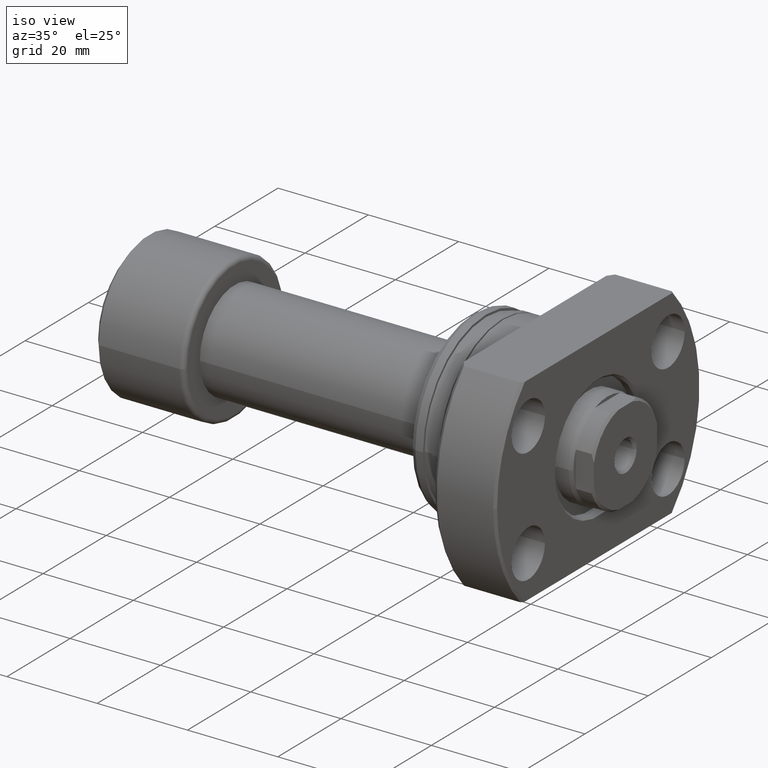
[diagram: clean part render]
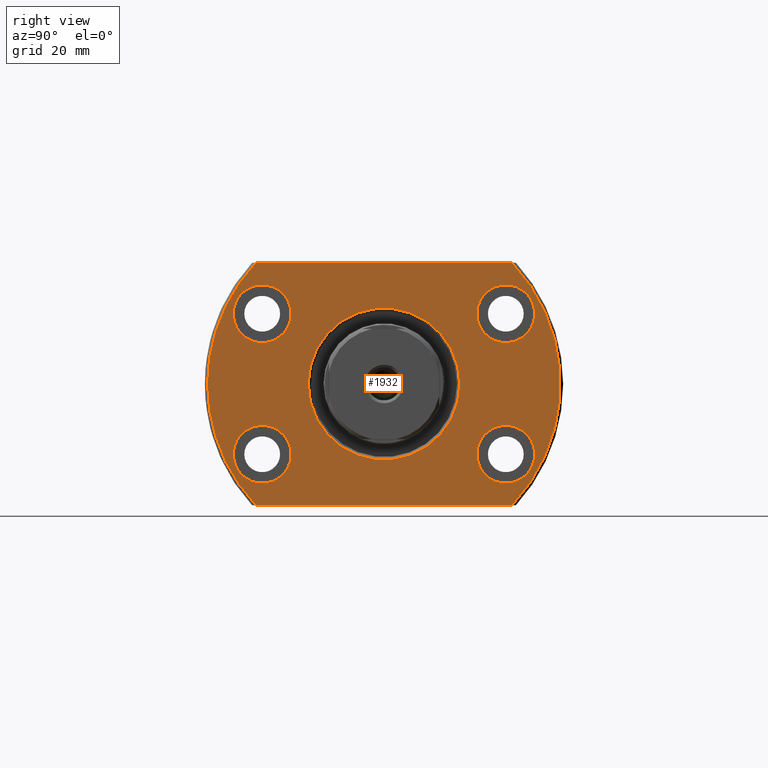
[diagram: tour spotlight — one face highlighted and labeled with its STEP entity id]
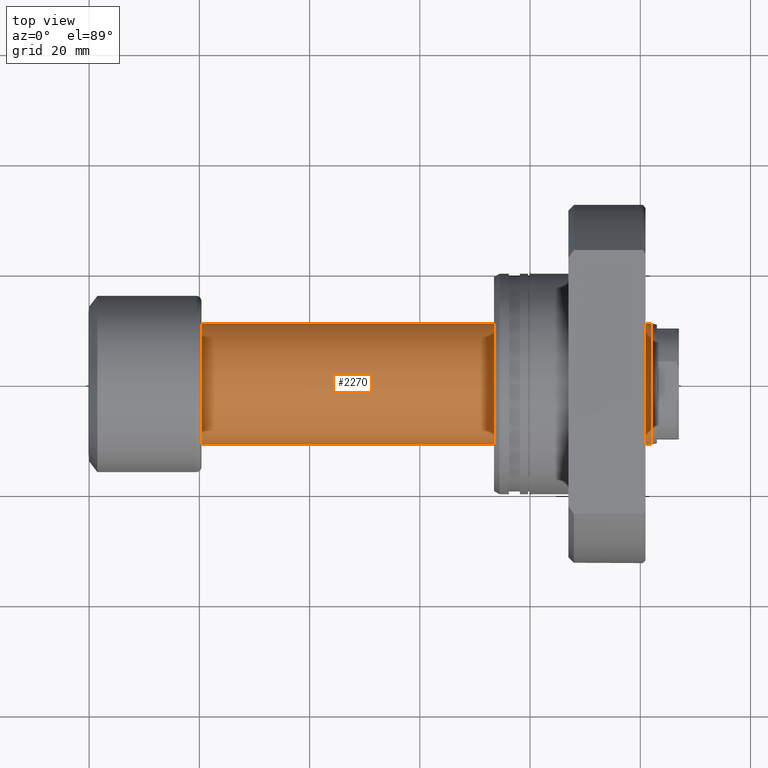
[diagram: tour spotlight — one face highlighted and labeled with its STEP entity id]
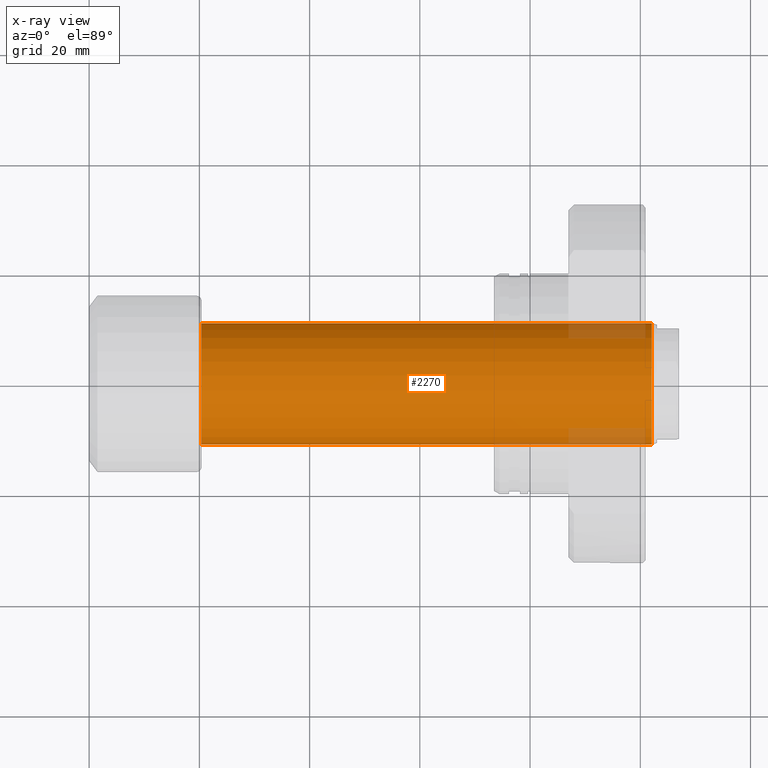
[diagram: x-ray of the same camera — body ghosted, this tour face saturated]
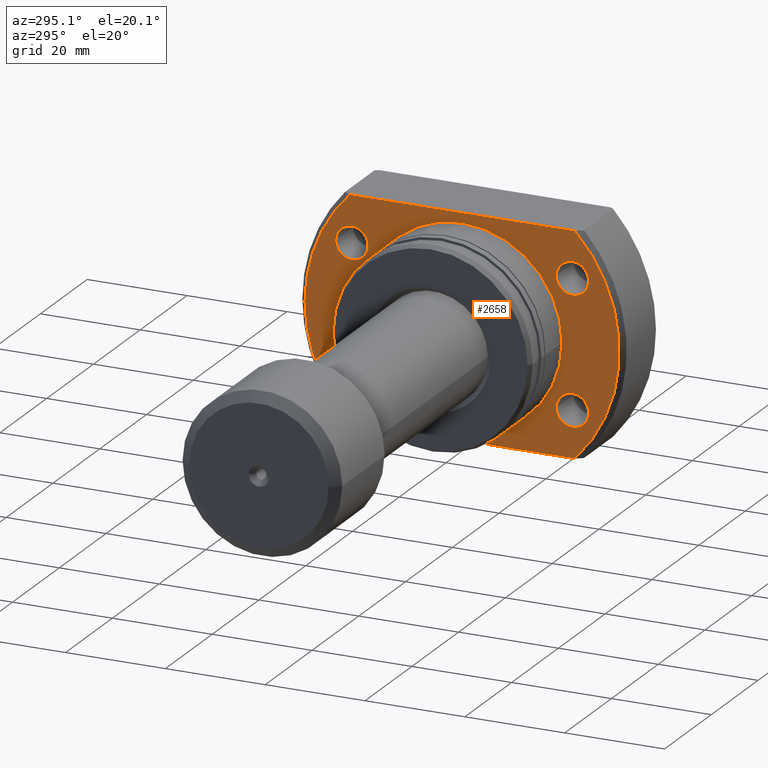
[diagram: tour spotlight — one face highlighted and labeled with its STEP entity id]
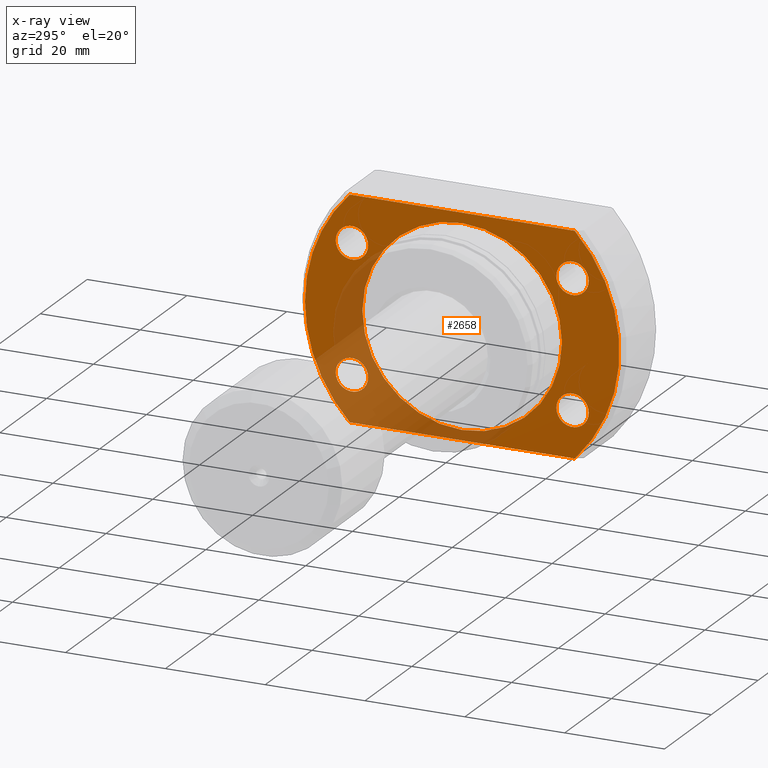
[diagram: x-ray of the same camera — body ghosted, this tour face saturated]
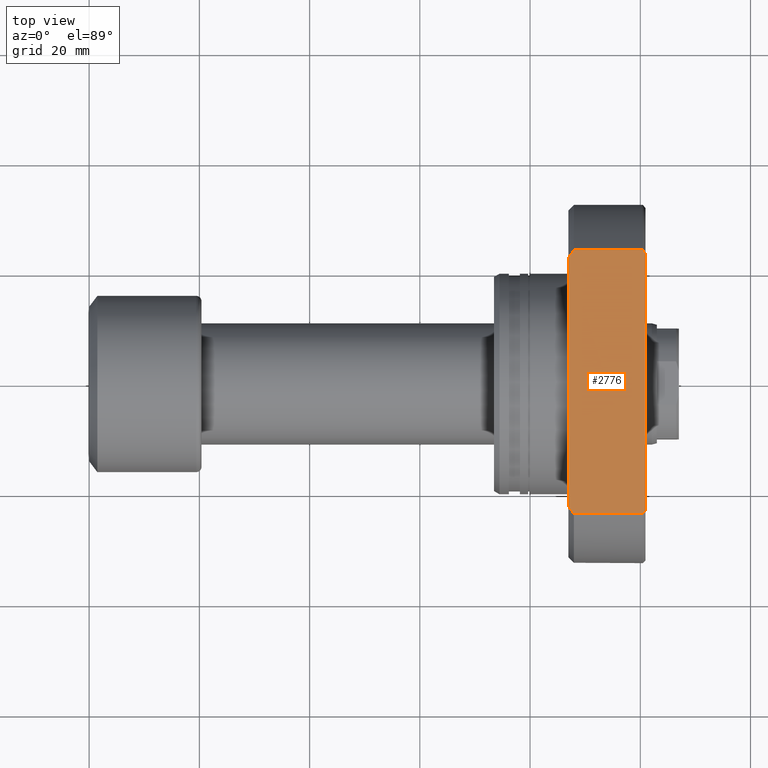
[diagram: tour spotlight — one face highlighted and labeled with its STEP entity id]
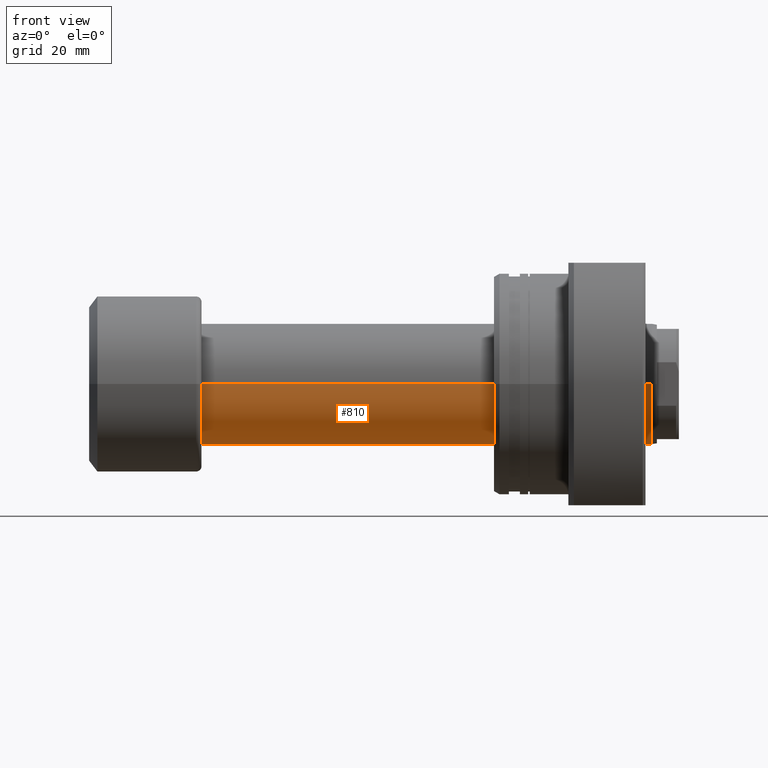
[diagram: tour spotlight — one face highlighted and labeled with its STEP entity id]
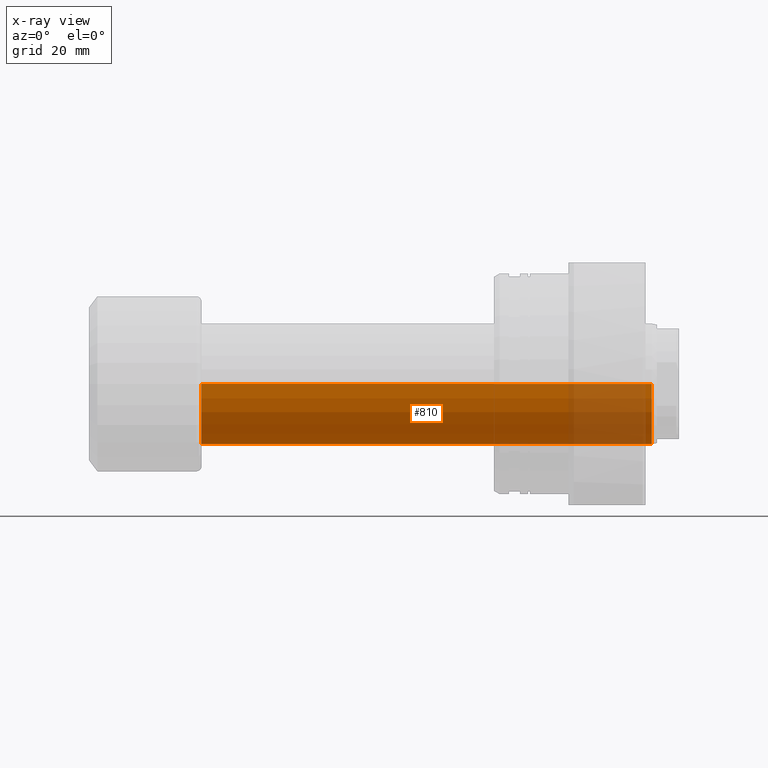
[diagram: x-ray of the same camera — body ghosted, this tour face saturated]
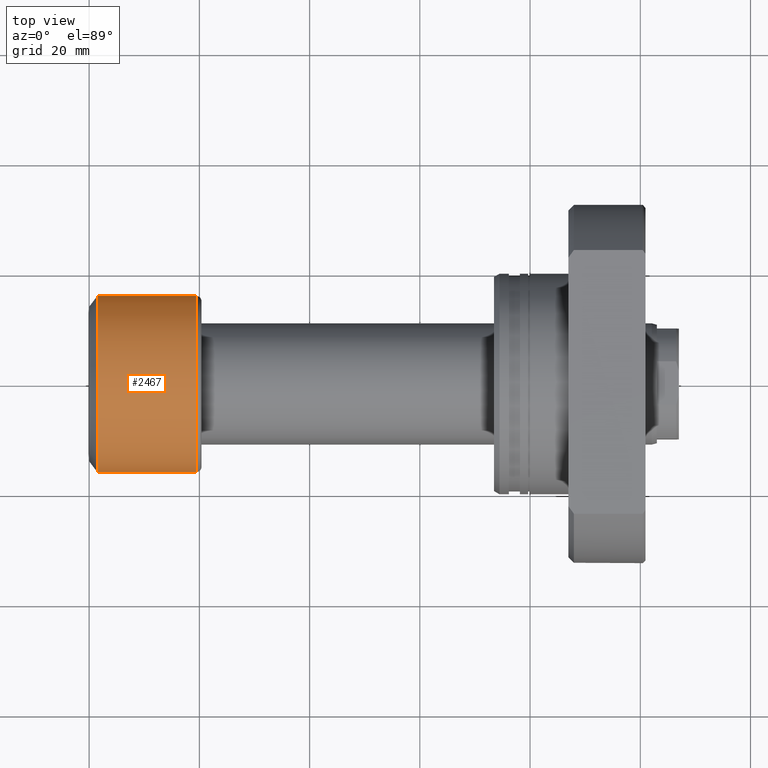
[diagram: tour spotlight — one face highlighted and labeled with its STEP entity id]
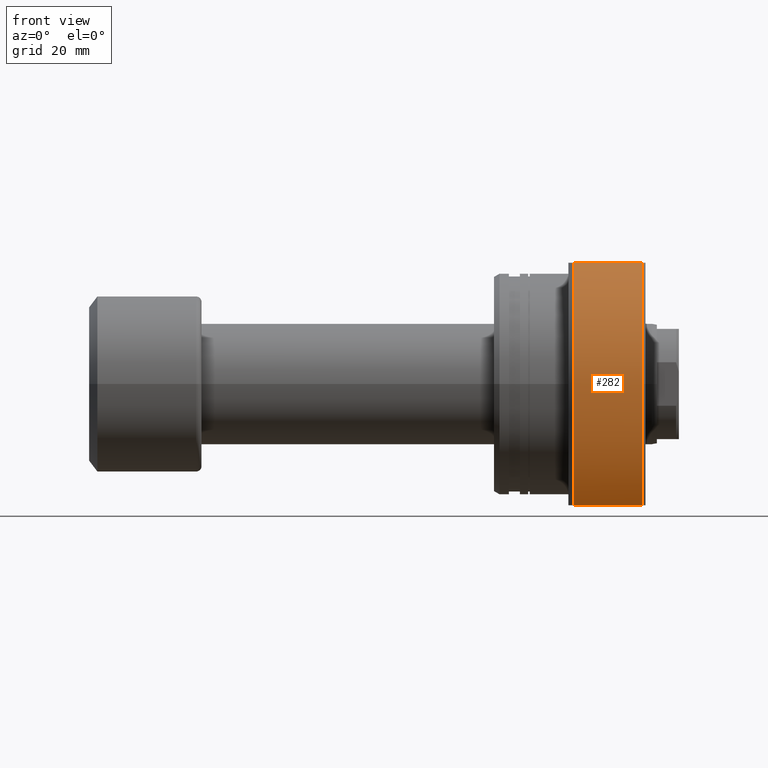
[diagram: tour spotlight — one face highlighted and labeled with its STEP entity id]
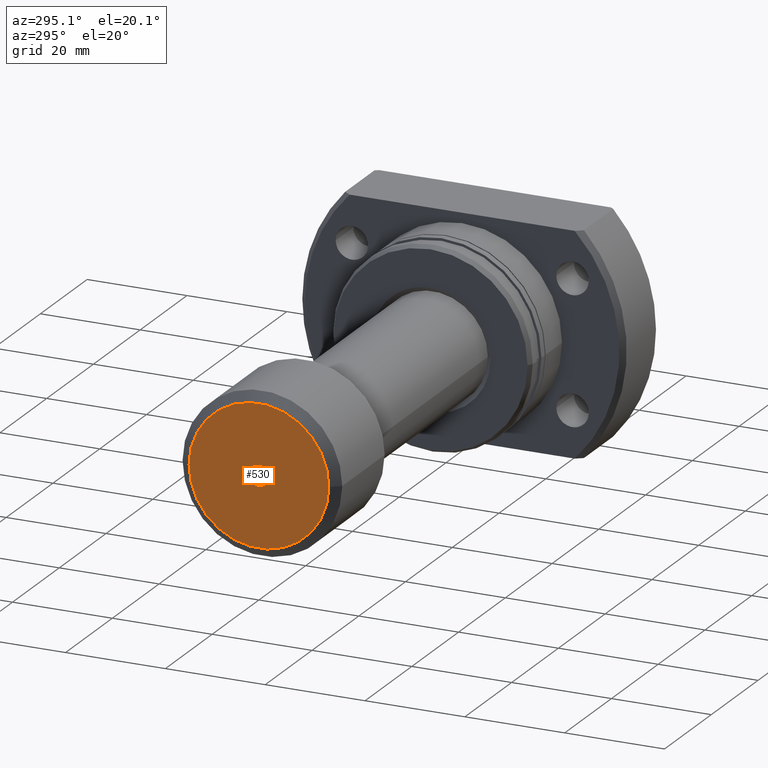
[diagram: tour spotlight — one face highlighted and labeled with its STEP entity id]
A machine part: a face-by-face anatomy tour. The part has 103 B-rep faces; the first image is the clean iso view, then the 8 largest visible faces are spotlighted one at a time (largest first), each with its STEP entity span.

Face 1 — right view, entity #1932. In plain terms, the highlighted planar face has unit normal (-1, -0, 0).
Definition (entity closure, byte-faithful):
#19 = EDGE_CURVE ( 'NONE', #357, #1593, #2964, .T. ) ;
#44 = CIRCLE ( 'NONE', #2736, 13.74999999999920774 ) ;
#50 = DIRECTION ( 'NONE',  ( 1.000000000000000000, -2.886466111666351885E-14, 0.000000000000000000 ) ) ;
#62 = DIRECTION ( 'NONE',  ( -1.000000000000000000, -1.335978326342566810E-17, 0.000000000000000000 ) ) ;
#108 = CARTESIAN_POINT ( 'NONE',  ( 27.50000000000000355, 23.23790007724450035, -22.00000000000000355 ) ) ;
#111 = CARTESIAN_POINT ( 'NONE',  ( 27.50000000000049027, 16.84999999999920917, 12.74999999999999822 ) ) ;
#125 = DIRECTION ( 'NONE',  ( -1.000000000000000000, -1.335978326342566810E-17, 0.000000000000000000 ) ) ;
#149 = ORIENTED_EDGE ( 'NONE', *, *, #2029, .F. ) ;
#165 = ORIENTED_EDGE ( 'NONE', *, *, #2103, .T. ) ;
#198 = ORIENTED_EDGE ( 'NONE', *, *, #578, .F. ) ;
#237 = DIRECTION ( 'NONE',  ( 2.907726969256361977E-14, 1.000000000000000000, 0.000000000000000000 ) ) ;
#240 = AXIS2_PLACEMENT_3D ( 'NONE', #503, #1491, #2496 ) ;
#262 = AXIS2_PLACEMENT_3D ( 'NONE', #1163, #2301, #2286 ) ;
#357 = VERTEX_POINT ( 'NONE', #865 ) ;
#387 = DIRECTION ( 'NONE',  ( 1.000000000000000000, -2.887798767815668620E-14, -6.310887241768094443E-30 ) ) ;
#432 = AXIS2_PLACEMENT_3D ( 'NONE', #1068, #50, #1783 ) ;
#444 = ORIENTED_EDGE ( 'NONE', *, *, #1253, .F. ) ;
#449 = CARTESIAN_POINT ( 'NONE',  ( 27.49999999999951683, -16.85000000000079012, -12.75000000000000178 ) ) ;
#452 = DIRECTION ( 'NONE',  ( 2.907726969256361977E-14, 1.000000000000000000, 0.000000000000000000 ) ) ;
#472 = FACE_BOUND ( 'NONE', #2337, .T. ) ;
#492 = DIRECTION ( 'NONE',  ( 1.000000000000000000, -2.887798767815668620E-14, -6.310887241768094443E-30 ) ) ;
#503 = CARTESIAN_POINT ( 'NONE',  ( 27.50000000000000355, -32.00000000000000000, 0.000000000000000000 ) ) ;
#536 = DIRECTION ( 'NONE',  ( 0.000000000000000000, 1.000000000000000000, 0.000000000000000000 ) ) ;
#553 = DIRECTION ( 'NONE',  ( 2.907726969256361977E-14, 1.000000000000000000, 0.000000000000000000 ) ) ;
#557 = EDGE_CURVE ( 'NONE', #1841, #917, #895, .T. ) ;
#573 = EDGE_CURVE ( 'NONE', #1387, #2961, #1639, .T. ) ;
#578 = EDGE_CURVE ( 'NONE', #1689, #2507, #1670, .T. ) ;
#584 = CARTESIAN_POINT ( 'NONE',  ( 27.50000000000000355, -32.00000000000000000, 0.000000000000000000 ) ) ;
#632 = CARTESIAN_POINT ( 'NONE',  ( 27.50000000000000355, 13.74999999999850075, 0.000000000000000000 ) ) ;
#635 = CARTESIAN_POINT ( 'NONE',  ( 27.50000000000000355, -13.75000000000070699, 1.683889348827610851E-15 ) ) ;
#670 = CIRCLE ( 'NONE', #1915, 32.00000000000000000 ) ;
#718 = ORIENTED_EDGE ( 'NONE', *, *, #2323, .T. ) ;
#722 = CARTESIAN_POINT ( 'NONE',  ( 27.50000000000064304, 22.09999999999920917, 12.74999999999999822 ) ) ;
#727 = CARTESIAN_POINT ( 'NONE',  ( 27.50000000000000355, 3.673940397442059375E-16, 0.000000000000000000 ) ) ;
#749 = FACE_BOUND ( 'NONE', #3212, .T. ) ;
#763 = FACE_OUTER_BOUND ( 'NONE', #1663, .T. ) ;
#769 = AXIS2_PLACEMENT_3D ( 'NONE', #2643, #387, #452 ) ;
#820 = CIRCLE ( 'NONE', #1969, 5.250000000000000888 ) ;
#827 = DIRECTION ( 'NONE',  ( 0.000000000000000000, -1.000000000000000000, 0.000000000000000000 ) ) ;
#842 = CARTESIAN_POINT ( 'NONE',  ( 27.50000000000000355, 23.23790007724450035, 22.00000000000000355 ) ) ;
#865 = CARTESIAN_POINT ( 'NONE',  ( 27.50000000000079581, 27.34999999999921272, 12.74999999999999822 ) ) ;
#881 = CARTESIAN_POINT ( 'NONE',  ( 27.50000000000000355, -7.068290497865035784E-13, 0.000000000000000000 ) ) ;
#884 = DIRECTION ( 'NONE',  ( -1.335978326342566810E-17, 1.000000000000000000, -0.000000000000000000 ) ) ;
#895 = CIRCLE ( 'NONE', #1985, 5.250000000000000888 ) ;
#917 = VERTEX_POINT ( 'NONE', #449 ) ;
#942 = CARTESIAN_POINT ( 'NONE',  ( 27.50000000000000355, -23.23790007724450035, 22.00000000000000355 ) ) ;
#965 = EDGE_LOOP ( 'NONE', ( #2515, #149 ) ) ;
#981 = DIRECTION ( 'NONE',  ( 1.000000000000000000, -2.886466111666351885E-14, 0.000000000000000000 ) ) ;
#1018 = CARTESIAN_POINT ( 'NONE',  ( 27.50000000000000355, 3.673940397442059375E-16, 0.000000000000000000 ) ) ;
#1034 = DIRECTION ( 'NONE',  ( 0.000000000000000000, 1.000000000000000000, 0.000000000000000000 ) ) ;
#1068 = CARTESIAN_POINT ( 'NONE',  ( 27.50000000000064304, 22.09999999999920917, 12.74999999999999822 ) ) ;
#1081 = AXIS2_PLACEMENT_3D ( 'NONE', #3029, #2213, #1971 ) ;
#1123 = CARTESIAN_POINT ( 'NONE',  ( 27.49999999999936406, -22.10000000000079368, -12.75000000000000178 ) ) ;
#1163 = CARTESIAN_POINT ( 'NONE',  ( 27.50000000000064304, 22.09999999999920917, -12.75000000000000178 ) ) ;
#1253 = EDGE_CURVE ( 'NONE', #1593, #357, #2600, .T. ) ;
#1254 = FACE_BOUND ( 'NONE', #2265, .T. ) ;
#1259 = VECTOR ( 'NONE', #884, 1000.000000000000000 ) ;
#1266 = CARTESIAN_POINT ( 'NONE',  ( 27.49999999999921130, -27.35000000000079368, -12.75000000000000178 ) ) ;
#1271 = VERTEX_POINT ( 'NONE', #584 ) ;
#1283 = CARTESIAN_POINT ( 'NONE',  ( 27.49999999999936406, -22.10000000000079368, 12.74999999999999822 ) ) ;
#1338 = ORIENTED_EDGE ( 'NONE', *, *, #2737, .T. ) ;
#1384 = VERTEX_POINT ( 'NONE', #842 ) ;
#1387 = VERTEX_POINT ( 'NONE', #1869 ) ;
#1404 = VERTEX_POINT ( 'NONE', #635 ) ;
#1421 = VERTEX_POINT ( 'NONE', #2099 ) ;
#1424 = EDGE_CURVE ( 'NONE', #2507, #1689, #2282, .T. ) ;
#1485 = EDGE_CURVE ( 'NONE', #3129, #1421, #820, .T. ) ;
#1491 = DIRECTION ( 'NONE',  ( -1.000000000000000000, -1.335978326342566810E-17, 0.000000000000000000 ) ) ;
#1493 = CIRCLE ( 'NONE', #3101, 5.250000000000000888 ) ;
#1563 = AXIS2_PLACEMENT_3D ( 'NONE', #722, #981, #2200 ) ;
#1593 = VERTEX_POINT ( 'NONE', #111 ) ;
#1625 = EDGE_CURVE ( 'NONE', #2157, #1404, #2243, .T. ) ;
#1634 = DIRECTION ( 'NONE',  ( -0.000000000000000000, 1.000000000000000000, 0.000000000000000000 ) ) ;
#1639 = LINE ( 'NONE', #2390, #1259 ) ;
#1663 = EDGE_LOOP ( 'NONE', ( #2831, #1338, #718, #2484, #1678 ) ) ;
#1670 = CIRCLE ( 'NONE', #262, 5.250000000000000888 ) ;
#1678 = ORIENTED_EDGE ( 'NONE', *, *, #2427, .T. ) ;
#1689 = VERTEX_POINT ( 'NONE', #2311 ) ;
#1732 = PLANE ( 'NONE',  #240 ) ;
#1783 = DIRECTION ( 'NONE',  ( 2.907726969256361977E-14, 1.000000000000000000, 0.000000000000000000 ) ) ;
#1802 = CIRCLE ( 'NONE', #2223, 32.00000000000000000 ) ;
#1806 = ORIENTED_EDGE ( 'NONE', *, *, #1625, .T. ) ;
#1811 = EDGE_CURVE ( 'NONE', #917, #1841, #2172, .T. ) ;
#1841 = VERTEX_POINT ( 'NONE', #1266 ) ;
#1845 = CARTESIAN_POINT ( 'NONE',  ( 27.50000000000000355, -7.068290497865035784E-13, 0.000000000000000000 ) ) ;
#1869 = CARTESIAN_POINT ( 'NONE',  ( 27.50000000000000355, -23.23790007724450035, -22.00000000000000355 ) ) ;
#1894 = ORIENTED_EDGE ( 'NONE', *, *, #19, .F. ) ;
#1895 = ORIENTED_EDGE ( 'NONE', *, *, #1811, .F. ) ;
#1915 = AXIS2_PLACEMENT_3D ( 'NONE', #727, #2720, #536 ) ;
#1932 = ADVANCED_FACE ( 'NONE', ( #472, #1254, #1983, #2972, #749, #763 ), #1732, .F. ) ;
#1969 = AXIS2_PLACEMENT_3D ( 'NONE', #1283, #492, #237 ) ;
#1971 = DIRECTION ( 'NONE',  ( 2.907726969256361977E-14, 1.000000000000000000, 0.000000000000000000 ) ) ;
#1983 = FACE_BOUND ( 'NONE', #965, .T. ) ;
#1984 = CARTESIAN_POINT ( 'NONE',  ( 27.50000000000000355, 3.673940397442059375E-16, 0.000000000000000000 ) ) ;
#1985 = AXIS2_PLACEMENT_3D ( 'NONE', #1123, #3142, #2626 ) ;
#1999 = DIRECTION ( 'NONE',  ( 1.000000000000000000, 1.335978326342566810E-17, -0.000000000000000000 ) ) ;
#2009 = DIRECTION ( 'NONE',  ( 1.000000000000000000, 1.335978326342566810E-17, -0.000000000000000000 ) ) ;
#2029 = EDGE_CURVE ( 'NONE', #1421, #3129, #1493, .T. ) ;
#2097 = CARTESIAN_POINT ( 'NONE',  ( 27.49999999999936406, -22.10000000000079368, 12.74999999999999822 ) ) ;
#2099 = CARTESIAN_POINT ( 'NONE',  ( 27.49999999999921130, -27.35000000000079368, 12.74999999999999822 ) ) ;
#2102 = CARTESIAN_POINT ( 'NONE',  ( 27.50000000000079581, 27.34999999999921272, -12.75000000000000178 ) ) ;
#2103 = EDGE_CURVE ( 'NONE', #1404, #2157, #44, .T. ) ;
#2157 = VERTEX_POINT ( 'NONE', #632 ) ;
#2159 = EDGE_CURVE ( 'NONE', #2170, #1384, #2385, .T. ) ;
#2170 = VERTEX_POINT ( 'NONE', #942 ) ;
#2172 = CIRCLE ( 'NONE', #769, 5.250000000000000888 ) ;
#2200 = DIRECTION ( 'NONE',  ( 2.907726969256361977E-14, 1.000000000000000000, 0.000000000000000000 ) ) ;
#2212 = DIRECTION ( 'NONE',  ( 0.000000000000000000, 1.000000000000000000, 0.000000000000000000 ) ) ;
#2213 = DIRECTION ( 'NONE',  ( 1.000000000000000000, -2.887798767815668620E-14, -6.310887241768094443E-30 ) ) ;
#2223 = AXIS2_PLACEMENT_3D ( 'NONE', #1018, #2009, #1034 ) ;
#2243 = CIRCLE ( 'NONE', #2590, 13.74999999999920774 ) ;
#2265 = EDGE_LOOP ( 'NONE', ( #1894, #444 ) ) ;
#2282 = CIRCLE ( 'NONE', #1081, 5.250000000000000888 ) ;
#2286 = DIRECTION ( 'NONE',  ( 2.907726969256361977E-14, 1.000000000000000000, 0.000000000000000000 ) ) ;
#2301 = DIRECTION ( 'NONE',  ( 1.000000000000000000, -2.887798767815668620E-14, -6.310887241768094443E-30 ) ) ;
#2311 = CARTESIAN_POINT ( 'NONE',  ( 27.50000000000049027, 16.84999999999920917, -12.75000000000000178 ) ) ;
#2323 = EDGE_CURVE ( 'NONE', #1271, #1387, #670, .T. ) ;
#2337 = EDGE_LOOP ( 'NONE', ( #1806, #165 ) ) ;
#2385 = LINE ( 'NONE', #2872, #2895 ) ;
#2390 = CARTESIAN_POINT ( 'NONE',  ( 27.50000000000000355, -32.00000000000000000, -22.00000000000000355 ) ) ;
#2427 = EDGE_CURVE ( 'NONE', #2961, #1384, #1802, .T. ) ;
#2484 = ORIENTED_EDGE ( 'NONE', *, *, #573, .T. ) ;
#2496 = DIRECTION ( 'NONE',  ( 1.335978326342566810E-17, -1.000000000000000000, 0.000000000000000000 ) ) ;
#2507 = VERTEX_POINT ( 'NONE', #2102 ) ;
#2515 = ORIENTED_EDGE ( 'NONE', *, *, #1485, .F. ) ;
#2590 = AXIS2_PLACEMENT_3D ( 'NONE', #881, #125, #827 ) ;
#2600 = CIRCLE ( 'NONE', #432, 5.250000000000000888 ) ;
#2626 = DIRECTION ( 'NONE',  ( 2.907726969256361977E-14, 1.000000000000000000, 0.000000000000000000 ) ) ;
#2643 = CARTESIAN_POINT ( 'NONE',  ( 27.49999999999936406, -22.10000000000079368, -12.75000000000000178 ) ) ;
#2678 = EDGE_LOOP ( 'NONE', ( #1895, #2847 ) ) ;
#2682 = AXIS2_PLACEMENT_3D ( 'NONE', #1984, #1999, #2212 ) ;
#2705 = CARTESIAN_POINT ( 'NONE',  ( 27.49999999999951683, -16.85000000000079012, 12.74999999999999822 ) ) ;
#2720 = DIRECTION ( 'NONE',  ( 1.000000000000000000, 1.335978326342566810E-17, -0.000000000000000000 ) ) ;
#2736 = AXIS2_PLACEMENT_3D ( 'NONE', #1845, #62, #2833 ) ;
#2737 = EDGE_CURVE ( 'NONE', #2170, #1271, #2741, .T. ) ;
#2741 = CIRCLE ( 'NONE', #2682, 32.00000000000000000 ) ;
#2772 = DIRECTION ( 'NONE',  ( 1.000000000000000000, -2.887798767815668620E-14, -6.310887241768094443E-30 ) ) ;
#2831 = ORIENTED_EDGE ( 'NONE', *, *, #2159, .F. ) ;
#2833 = DIRECTION ( 'NONE',  ( 0.000000000000000000, -1.000000000000000000, 0.000000000000000000 ) ) ;
#2847 = ORIENTED_EDGE ( 'NONE', *, *, #557, .F. ) ;
#2872 = CARTESIAN_POINT ( 'NONE',  ( 27.50000000000000355, 23.92174742781206831, 22.00000000000000355 ) ) ;
#2895 = VECTOR ( 'NONE', #1634, 1000.000000000000000 ) ;
#2961 = VERTEX_POINT ( 'NONE', #108 ) ;
#2964 = CIRCLE ( 'NONE', #1563, 5.250000000000000888 ) ;
#2972 = FACE_BOUND ( 'NONE', #2678, .T. ) ;
#3029 = CARTESIAN_POINT ( 'NONE',  ( 27.50000000000064304, 22.09999999999920917, -12.75000000000000178 ) ) ;
#3101 = AXIS2_PLACEMENT_3D ( 'NONE', #2097, #2772, #553 ) ;
#3129 = VERTEX_POINT ( 'NONE', #2705 ) ;
#3142 = DIRECTION ( 'NONE',  ( 1.000000000000000000, -2.887798767815668620E-14, -6.310887241768094443E-30 ) ) ;
#3208 = ORIENTED_EDGE ( 'NONE', *, *, #1424, .F. ) ;
#3212 = EDGE_LOOP ( 'NONE', ( #3208, #198 ) ) ;

Face 2 — top view, entity #2270. An x-ray twin of the same camera follows (body ghosted, this face saturated) — the face is partly hidden behind the body. In plain terms, the highlighted cylindrical surface (partial cylindrical patch) has radius 11 mm, axis along (-1, -0, -0).
Definition (entity closure, byte-faithful):
#56 = DIRECTION ( 'NONE',  ( -1.000000000000000000, -1.069542322069065801E-17, -0.000000000000000000 ) ) ;
#352 = AXIS2_PLACEMENT_3D ( 'NONE', #2735, #3045, #1743 ) ;
#369 = CARTESIAN_POINT ( 'NONE',  ( 1.176496554275982688E-16, -11.00000000000009592, 0.000000000000000000 ) ) ;
#430 = EDGE_CURVE ( 'NONE', #2928, #2394, #1512, .T. ) ;
#440 = EDGE_CURVE ( 'NONE', #2394, #1091, #2070, .T. ) ;
#450 = FACE_OUTER_BOUND ( 'NONE', #1372, .T. ) ;
#562 = ORIENTED_EDGE ( 'NONE', *, *, #430, .T. ) ;
#893 = CARTESIAN_POINT ( 'NONE',  ( 102.0667575123237754, -11.00000000000019007, 0.000000000000000000 ) ) ;
#958 = DIRECTION ( 'NONE',  ( -1.000000000000000000, -1.069542322069065801E-17, -0.000000000000000000 ) ) ;
#1030 = AXIS2_PLACEMENT_3D ( 'NONE', #3119, #958, #1459 ) ;
#1038 = EDGE_CURVE ( 'NONE', #2897, #1091, #1501, .T. ) ;
#1073 = CARTESIAN_POINT ( 'NONE',  ( 102.0667575123237754, 1.091647168357910311E-15, 0.000000000000000000 ) ) ;
#1091 = VERTEX_POINT ( 'NONE', #2819 ) ;
#1290 = DIRECTION ( 'NONE',  ( 0.000000000000000000, -1.000000000000000000, 0.000000000000000000 ) ) ;
#1309 = ORIENTED_EDGE ( 'NONE', *, *, #1038, .F. ) ;
#1372 = EDGE_LOOP ( 'NONE', ( #562, #1591, #1309, #1373 ) ) ;
#1373 = ORIENTED_EDGE ( 'NONE', *, *, #2561, .F. ) ;
#1459 = DIRECTION ( 'NONE',  ( 1.069542322069065801E-17, -1.000000000000000000, 0.000000000000000000 ) ) ;
#1501 = CIRCLE ( 'NONE', #352, 11.00000000000000000 ) ;
#1512 = CIRCLE ( 'NONE', #1771, 11.00000000000019185 ) ;
#1591 = ORIENTED_EDGE ( 'NONE', *, *, #440, .T. ) ;
#1743 = DIRECTION ( 'NONE',  ( 0.000000000000000000, -1.000000000000000000, 0.000000000000000000 ) ) ;
#1771 = AXIS2_PLACEMENT_3D ( 'NONE', #1073, #2329, #1290 ) ;
#1860 = VECTOR ( 'NONE', #3104, 1000.000000000000000 ) ;
#2070 = LINE ( 'NONE', #2560, #2967 ) ;
#2130 = CYLINDRICAL_SURFACE ( 'NONE', #1030, 11.00000000000009592 ) ;
#2221 = CARTESIAN_POINT ( 'NONE',  ( 102.0667575123237754, 11.00000000000019362, 1.347111479062112268E-15 ) ) ;
#2270 = ADVANCED_FACE ( 'NONE', ( #450 ), #2130, .T. ) ;
#2329 = DIRECTION ( 'NONE',  ( -1.000000000000000000, -1.069542322069065801E-17, -0.000000000000000000 ) ) ;
#2394 = VERTEX_POINT ( 'NONE', #2221 ) ;
#2524 = CARTESIAN_POINT ( 'NONE',  ( 20.39999999999999503, -11.00000000000000000, 0.000000000000000000 ) ) ;
#2560 = CARTESIAN_POINT ( 'NONE',  ( -1.176496554275982688E-16, 11.00000000000009592, 1.347111479062100435E-15 ) ) ;
#2561 = EDGE_CURVE ( 'NONE', #2928, #2897, #3125, .T. ) ;
#2735 = CARTESIAN_POINT ( 'NONE',  ( 20.39999999999999503, 2.181866337020893623E-16, 0.000000000000000000 ) ) ;
#2819 = CARTESIAN_POINT ( 'NONE',  ( 20.39999999999999503, 11.00000000000000000, 1.347111479062094321E-15 ) ) ;
#2897 = VERTEX_POINT ( 'NONE', #2524 ) ;
#2928 = VERTEX_POINT ( 'NONE', #893 ) ;
#2967 = VECTOR ( 'NONE', #56, 1000.000000000000000 ) ;
#3045 = DIRECTION ( 'NONE',  ( -1.000000000000000000, -1.069542322069065801E-17, -0.000000000000000000 ) ) ;
#3104 = DIRECTION ( 'NONE',  ( -1.000000000000000000, -1.069542322069065801E-17, -0.000000000000000000 ) ) ;
#3119 = CARTESIAN_POINT ( 'NONE',  ( 0.000000000000000000, 0.000000000000000000, 0.000000000000000000 ) ) ;
#3125 = LINE ( 'NONE', #369, #1860 ) ;

Face 3 — auxiliary view, entity #2658. An x-ray twin of the same camera follows (body ghosted, this face saturated) — the face is partly hidden behind the body. In plain terms, the highlighted planar face has unit normal (1, 0, 0).
Definition (entity closure, byte-faithful):
#21 = ORIENTED_EDGE ( 'NONE', *, *, #1206, .T. ) ;
#24 = CARTESIAN_POINT ( 'NONE',  ( 13.50000000000000178, 25.34999999999961418, -12.75000000000000178 ) ) ;
#94 = CARTESIAN_POINT ( 'NONE',  ( 13.50000000000000178, 22.54440063519089676, -22.00000000000000355 ) ) ;
#97 = EDGE_CURVE ( 'NONE', #2232, #288, #1665, .T. ) ;
#151 = VERTEX_POINT ( 'NONE', #2188 ) ;
#213 = VERTEX_POINT ( 'NONE', #2110 ) ;
#223 = EDGE_CURVE ( 'NONE', #2120, #213, #476, .T. ) ;
#245 = CIRCLE ( 'NONE', #1398, 3.249999999999999556 ) ;
#271 = CARTESIAN_POINT ( 'NONE',  ( 13.50000000000000178, -22.10000000000038511, 12.74999999999999822 ) ) ;
#278 = ORIENTED_EDGE ( 'NONE', *, *, #1613, .T. ) ;
#286 = DIRECTION ( 'NONE',  ( 0.000000000000000000, 1.000000000000000000, 0.000000000000000000 ) ) ;
#288 = VERTEX_POINT ( 'NONE', #629 ) ;
#321 = EDGE_CURVE ( 'NONE', #1579, #2436, #1210, .T. ) ;
#359 = EDGE_CURVE ( 'NONE', #2752, #151, #2191, .T. ) ;
#360 = AXIS2_PLACEMENT_3D ( 'NONE', #1092, #1815, #600 ) ;
#365 = DIRECTION ( 'NONE',  ( 0.000000000000000000, 1.000000000000000000, 0.000000000000000000 ) ) ;
#384 = CARTESIAN_POINT ( 'NONE',  ( 13.50000000000000355, -19.99999999999999645, 2.449293598294706119E-15 ) ) ;
#453 = FACE_BOUND ( 'NONE', #481, .T. ) ;
#476 = CIRCLE ( 'NONE', #733, 3.249999999999999556 ) ;
#481 = EDGE_LOOP ( 'NONE', ( #278, #2844 ) ) ;
#491 = DIRECTION ( 'NONE',  ( -1.335978326342566810E-17, 1.000000000000000000, 0.000000000000000000 ) ) ;
#515 = AXIS2_PLACEMENT_3D ( 'NONE', #1511, #752, #2501 ) ;
#525 = CARTESIAN_POINT ( 'NONE',  ( 13.50000000000000178, -25.35000000000038511, -12.75000000000000178 ) ) ;
#526 = CARTESIAN_POINT ( 'NONE',  ( 13.50000000000000178, -19.99999999999999645, 22.00000000000000355 ) ) ;
#542 = CARTESIAN_POINT ( 'NONE',  ( 13.50000000000000178, 22.09999999999961773, -12.75000000000000178 ) ) ;
#559 = ORIENTED_EDGE ( 'NONE', *, *, #1484, .T. ) ;
#600 = DIRECTION ( 'NONE',  ( 0.000000000000000000, 1.000000000000000000, 0.000000000000000000 ) ) ;
#629 = CARTESIAN_POINT ( 'NONE',  ( 13.50000000000000355, 19.99999999999999645, 0.000000000000000000 ) ) ;
#696 = CARTESIAN_POINT ( 'NONE',  ( 13.50000000000000178, 18.84999999999961773, -12.75000000000000178 ) ) ;
#702 = DIRECTION ( 'NONE',  ( 1.000000000000000000, 1.335978326342566810E-17, -0.000000000000000000 ) ) ;
#710 = DIRECTION ( 'NONE',  ( 1.335978326342566810E-17, -1.000000000000000000, 0.000000000000000000 ) ) ;
#733 = AXIS2_PLACEMENT_3D ( 'NONE', #2174, #3166, #1393 ) ;
#752 = DIRECTION ( 'NONE',  ( 1.000000000000000000, 1.335978326342566810E-17, -0.000000000000000000 ) ) ;
#833 = EDGE_LOOP ( 'NONE', ( #2451, #2449 ) ) ;
#878 = EDGE_CURVE ( 'NONE', #213, #2120, #1053, .T. ) ;
#924 = CARTESIAN_POINT ( 'NONE',  ( 13.50000000000001421, -22.54440063519093940, -22.00000000000000355 ) ) ;
#934 = EDGE_LOOP ( 'NONE', ( #2504, #21 ) ) ;
#941 = CARTESIAN_POINT ( 'NONE',  ( 13.50000000000000178, 22.09999999999961773, 12.74999999999999822 ) ) ;
#949 = VERTEX_POINT ( 'NONE', #696 ) ;
#980 = VERTEX_POINT ( 'NONE', #924 ) ;
#1005 = CARTESIAN_POINT ( 'NONE',  ( 13.50000000000000178, 22.54440063519089676, 22.00000000000000355 ) ) ;
#1010 = PLANE ( 'NONE',  #3214 ) ;
#1053 = CIRCLE ( 'NONE', #2864, 3.249999999999999556 ) ;
#1059 = DIRECTION ( 'NONE',  ( 1.000000000000000000, 1.335978326342566810E-17, -0.000000000000000000 ) ) ;
#1089 = DIRECTION ( 'NONE',  ( 0.000000000000000000, 1.000000000000000000, 0.000000000000000000 ) ) ;
#1092 = CARTESIAN_POINT ( 'NONE',  ( 13.50000000000000355, 1.803570740562465471E-16, 0.000000000000000000 ) ) ;
#1138 = DIRECTION ( 'NONE',  ( 1.000000000000000000, 1.335978326342566810E-17, -0.000000000000000000 ) ) ;
#1156 = AXIS2_PLACEMENT_3D ( 'NONE', #1728, #1978, #2719 ) ;
#1157 = CARTESIAN_POINT ( 'NONE',  ( 13.50000000000000178, 1.803570740562465225E-16, 0.000000000000000000 ) ) ;
#1161 = EDGE_CURVE ( 'NONE', #2468, #2326, #1366, .T. ) ;
#1206 = EDGE_CURVE ( 'NONE', #949, #2418, #1621, .T. ) ;
#1209 = FACE_BOUND ( 'NONE', #833, .T. ) ;
#1210 = CIRCLE ( 'NONE', #2704, 31.49999999999993250 ) ;
#1257 = EDGE_CURVE ( 'NONE', #2332, #1929, #2804, .T. ) ;
#1272 = EDGE_LOOP ( 'NONE', ( #1829, #2980 ) ) ;
#1320 = DIRECTION ( 'NONE',  ( 0.000000000000000000, 1.000000000000000000, 0.000000000000000000 ) ) ;
#1350 = EDGE_CURVE ( 'NONE', #2418, #949, #245, .T. ) ;
#1352 = EDGE_CURVE ( 'NONE', #1929, #980, #3219, .T. ) ;
#1366 = CIRCLE ( 'NONE', #3185, 3.249999999999999556 ) ;
#1393 = DIRECTION ( 'NONE',  ( 0.000000000000000000, 1.000000000000000000, 0.000000000000000000 ) ) ;
#1398 = AXIS2_PLACEMENT_3D ( 'NONE', #2083, #1138, #1089 ) ;
#1425 = CARTESIAN_POINT ( 'NONE',  ( 13.50000000000000178, 1.803570740562465225E-16, 0.000000000000000000 ) ) ;
#1445 = VECTOR ( 'NONE', #710, 1000.000000000000000 ) ;
#1449 = AXIS2_PLACEMENT_3D ( 'NONE', #2587, #2606, #2873 ) ;
#1484 = EDGE_CURVE ( 'NONE', #151, #2752, #1752, .T. ) ;
#1492 = FACE_OUTER_BOUND ( 'NONE', #2578, .T. ) ;
#1511 = CARTESIAN_POINT ( 'NONE',  ( 13.50000000000000178, -22.10000000000038511, -12.75000000000000178 ) ) ;
#1579 = VERTEX_POINT ( 'NONE', #94 ) ;
#1600 = DIRECTION ( 'NONE',  ( 1.000000000000000000, 1.335978326342566810E-17, -0.000000000000000000 ) ) ;
#1601 = DIRECTION ( 'NONE',  ( 1.000000000000000000, 1.335978326342566810E-17, -0.000000000000000000 ) ) ;
#1613 = EDGE_CURVE ( 'NONE', #288, #2232, #2699, .T. ) ;
#1621 = CIRCLE ( 'NONE', #2502, 3.249999999999999556 ) ;
#1636 = CARTESIAN_POINT ( 'NONE',  ( 13.50000000000000178, 1.803570740562465225E-16, 0.000000000000000000 ) ) ;
#1648 = DIRECTION ( 'NONE',  ( 1.000000000000000000, 1.335978326342566810E-17, -0.000000000000000000 ) ) ;
#1653 = CIRCLE ( 'NONE', #2283, 31.49999999999993250 ) ;
#1665 = CIRCLE ( 'NONE', #1156, 19.99999999999999645 ) ;
#1696 = LINE ( 'NONE', #1761, #1445 ) ;
#1728 = CARTESIAN_POINT ( 'NONE',  ( 13.50000000000000355, 1.803570740562465471E-16, 0.000000000000000000 ) ) ;
#1747 = DIRECTION ( 'NONE',  ( 1.335978326342566810E-17, -1.000000000000000000, 0.000000000000000000 ) ) ;
#1752 = CIRCLE ( 'NONE', #515, 3.249999999999999556 ) ;
#1761 = CARTESIAN_POINT ( 'NONE',  ( 13.50000000000000178, -19.99999999999999645, -22.00000000000000355 ) ) ;
#1772 = ORIENTED_EDGE ( 'NONE', *, *, #3049, .F. ) ;
#1790 = DIRECTION ( 'NONE',  ( 1.000000000000000000, 1.335978326342566810E-17, -0.000000000000000000 ) ) ;
#1804 = DIRECTION ( 'NONE',  ( 0.000000000000000000, 1.000000000000000000, 0.000000000000000000 ) ) ;
#1815 = DIRECTION ( 'NONE',  ( 1.000000000000000000, 1.335978326342566810E-17, -0.000000000000000000 ) ) ;
#1829 = ORIENTED_EDGE ( 'NONE', *, *, #878, .T. ) ;
#1929 = VERTEX_POINT ( 'NONE', #3024 ) ;
#1948 = CARTESIAN_POINT ( 'NONE',  ( 13.50000000000000178, -18.85000000000038867, 12.74999999999999822 ) ) ;
#1978 = DIRECTION ( 'NONE',  ( 1.000000000000000000, 1.335978326342566810E-17, -0.000000000000000000 ) ) ;
#2083 = CARTESIAN_POINT ( 'NONE',  ( 13.50000000000000178, 22.09999999999961773, -12.75000000000000178 ) ) ;
#2110 = CARTESIAN_POINT ( 'NONE',  ( 13.50000000000000178, 25.34999999999961418, 12.74999999999999822 ) ) ;
#2116 = CARTESIAN_POINT ( 'NONE',  ( 13.50000000000000178, -25.35000000000038511, 12.74999999999999822 ) ) ;
#2120 = VERTEX_POINT ( 'NONE', #2399 ) ;
#2160 = DIRECTION ( 'NONE',  ( 1.000000000000000000, 1.335978326342566810E-17, -0.000000000000000000 ) ) ;
#2174 = CARTESIAN_POINT ( 'NONE',  ( 13.50000000000000178, 22.09999999999961773, 12.74999999999999822 ) ) ;
#2180 = CARTESIAN_POINT ( 'NONE',  ( 13.50000000000000178, -19.99999999999999645, 0.000000000000000000 ) ) ;
#2188 = CARTESIAN_POINT ( 'NONE',  ( 13.50000000000000178, -18.85000000000038867, -12.75000000000000178 ) ) ;
#2191 = CIRCLE ( 'NONE', #3128, 3.249999999999999556 ) ;
#2195 = FACE_BOUND ( 'NONE', #934, .T. ) ;
#2198 = ORIENTED_EDGE ( 'NONE', *, *, #2306, .T. ) ;
#2206 = DIRECTION ( 'NONE',  ( 0.000000000000000000, 1.000000000000000000, 0.000000000000000000 ) ) ;
#2232 = VERTEX_POINT ( 'NONE', #384 ) ;
#2272 = CARTESIAN_POINT ( 'NONE',  ( 13.50000000000000178, 31.49999999999993250, 0.000000000000000000 ) ) ;
#2283 = AXIS2_PLACEMENT_3D ( 'NONE', #1157, #1600, #365 ) ;
#2295 = DIRECTION ( 'NONE',  ( 0.000000000000000000, 1.000000000000000000, 0.000000000000000000 ) ) ;
#2306 = EDGE_CURVE ( 'NONE', #1579, #980, #1696, .T. ) ;
#2326 = VERTEX_POINT ( 'NONE', #1948 ) ;
#2332 = VERTEX_POINT ( 'NONE', #1005 ) ;
#2381 = AXIS2_PLACEMENT_3D ( 'NONE', #1636, #1601, #2835 ) ;
#2399 = CARTESIAN_POINT ( 'NONE',  ( 13.50000000000000178, 18.84999999999961773, 12.74999999999999822 ) ) ;
#2418 = VERTEX_POINT ( 'NONE', #24 ) ;
#2436 = VERTEX_POINT ( 'NONE', #2272 ) ;
#2449 = ORIENTED_EDGE ( 'NONE', *, *, #1161, .T. ) ;
#2451 = ORIENTED_EDGE ( 'NONE', *, *, #2938, .T. ) ;
#2468 = VERTEX_POINT ( 'NONE', #2116 ) ;
#2501 = DIRECTION ( 'NONE',  ( 0.000000000000000000, 1.000000000000000000, 0.000000000000000000 ) ) ;
#2502 = AXIS2_PLACEMENT_3D ( 'NONE', #542, #1059, #286 ) ;
#2504 = ORIENTED_EDGE ( 'NONE', *, *, #1350, .T. ) ;
#2562 = ORIENTED_EDGE ( 'NONE', *, *, #321, .F. ) ;
#2578 = EDGE_LOOP ( 'NONE', ( #3161, #1772, #2562, #2198, #2628 ) ) ;
#2587 = CARTESIAN_POINT ( 'NONE',  ( 13.50000000000000178, -22.10000000000038511, 12.74999999999999822 ) ) ;
#2606 = DIRECTION ( 'NONE',  ( 1.000000000000000000, 1.335978326342566810E-17, -0.000000000000000000 ) ) ;
#2628 = ORIENTED_EDGE ( 'NONE', *, *, #1352, .F. ) ;
#2658 = ADVANCED_FACE ( 'NONE', ( #2989, #1209, #2939, #2195, #453, #1492 ), #1010, .F. ) ;
#2699 = CIRCLE ( 'NONE', #360, 19.99999999999999645 ) ;
#2704 = AXIS2_PLACEMENT_3D ( 'NONE', #1425, #2160, #1804 ) ;
#2719 = DIRECTION ( 'NONE',  ( 0.000000000000000000, 1.000000000000000000, 0.000000000000000000 ) ) ;
#2752 = VERTEX_POINT ( 'NONE', #525 ) ;
#2778 = EDGE_LOOP ( 'NONE', ( #559, #3144 ) ) ;
#2804 = LINE ( 'NONE', #526, #3076 ) ;
#2835 = DIRECTION ( 'NONE',  ( 0.000000000000000000, 1.000000000000000000, 0.000000000000000000 ) ) ;
#2841 = CARTESIAN_POINT ( 'NONE',  ( 13.50000000000000178, -22.10000000000038511, -12.75000000000000178 ) ) ;
#2844 = ORIENTED_EDGE ( 'NONE', *, *, #97, .T. ) ;
#2848 = CIRCLE ( 'NONE', #1449, 3.249999999999999556 ) ;
#2864 = AXIS2_PLACEMENT_3D ( 'NONE', #941, #1648, #2206 ) ;
#2873 = DIRECTION ( 'NONE',  ( 0.000000000000000000, 1.000000000000000000, 0.000000000000000000 ) ) ;
#2938 = EDGE_CURVE ( 'NONE', #2326, #2468, #2848, .T. ) ;
#2939 = FACE_BOUND ( 'NONE', #2778, .T. ) ;
#2980 = ORIENTED_EDGE ( 'NONE', *, *, #223, .T. ) ;
#2989 = FACE_BOUND ( 'NONE', #1272, .T. ) ;
#3024 = CARTESIAN_POINT ( 'NONE',  ( 13.50000000000001421, -22.54440063519093940, 22.00000000000000355 ) ) ;
#3049 = EDGE_CURVE ( 'NONE', #2436, #2332, #1653, .T. ) ;
#3051 = DIRECTION ( 'NONE',  ( 1.000000000000000000, 1.335978326342566810E-17, -0.000000000000000000 ) ) ;
#3076 = VECTOR ( 'NONE', #1747, 1000.000000000000000 ) ;
#3128 = AXIS2_PLACEMENT_3D ( 'NONE', #2841, #1790, #1320 ) ;
#3144 = ORIENTED_EDGE ( 'NONE', *, *, #359, .T. ) ;
#3161 = ORIENTED_EDGE ( 'NONE', *, *, #1257, .F. ) ;
#3166 = DIRECTION ( 'NONE',  ( 1.000000000000000000, 1.335978326342566810E-17, -0.000000000000000000 ) ) ;
#3185 = AXIS2_PLACEMENT_3D ( 'NONE', #271, #3051, #2295 ) ;
#3214 = AXIS2_PLACEMENT_3D ( 'NONE', #2180, #702, #491 ) ;
#3219 = CIRCLE ( 'NONE', #2381, 31.49999999999993250 ) ;

Face 4 — top view, entity #2776. In plain terms, the highlighted planar face has unit normal (0, 0, 1).
Definition (entity closure, byte-faithful):
#40 = ORIENTED_EDGE ( 'NONE', *, *, #3021, .F. ) ;
#66 = B_SPLINE_CURVE_WITH_KNOTS ( 'NONE', 3,
 ( #943, #699, #1251, #3187 ),
 .UNSPECIFIED., .F., .F.,
 ( 4, 4 ),
 ( 0.08934887722955493772, 0.09106053602301761307 ),
 .UNSPECIFIED. ) ;
#154 = B_SPLINE_CURVE_WITH_KNOTS ( 'NONE', 3,
 ( #1411, #2923, #1865, #2855 ),
 .UNSPECIFIED., .F., .F.,
 ( 4, 4 ),
 ( 0.03779112510166890426, 0.03863931077161743971 ),
 .UNSPECIFIED. ) ;
#174 = CARTESIAN_POINT ( 'NONE',  ( 27.50000000000000355, 23.23790007724450035, 22.00000000000000355 ) ) ;
#250 = VECTOR ( 'NONE', #1347, 1000.000000000000000 ) ;
#269 = CARTESIAN_POINT ( 'NONE',  ( 14.49999999999999289, -23.92174742781091012, 22.00000000000000711 ) ) ;
#301 = DIRECTION ( 'NONE',  ( 1.000000000000000000, 0.000000000000000000, -0.000000000000000000 ) ) ;
#307 = CARTESIAN_POINT ( 'NONE',  ( -1.623701173514291440E-12, -23.92174742781049090, 22.00000000000000711 ) ) ;
#399 = CARTESIAN_POINT ( 'NONE',  ( -2.428612866367529932E-13, 23.92174742781206120, 22.00000000000000000 ) ) ;
#499 = EDGE_CURVE ( 'NONE', #851, #2332, #1164, .T. ) ;
#516 = AXIS2_PLACEMENT_3D ( 'NONE', #598, #807, #301 ) ;
#526 = CARTESIAN_POINT ( 'NONE',  ( 13.50000000000000178, -19.99999999999999645, 22.00000000000000355 ) ) ;
#598 = CARTESIAN_POINT ( 'NONE',  ( -2.428612866367529932E-13, 23.92174742781206831, 22.00000000000000355 ) ) ;
#603 = EDGE_CURVE ( 'NONE', #1942, #1878, #1532, .T. ) ;
#699 = CARTESIAN_POINT ( 'NONE',  ( 13.82998096711740033, -23.00546414414808538, 22.00000000000000355 ) ) ;
#796 = FACE_OUTER_BOUND ( 'NONE', #1149, .T. ) ;
#807 = DIRECTION ( 'NONE',  ( 0.000000000000000000, 0.000000000000000000, 1.000000000000000000 ) ) ;
#842 = CARTESIAN_POINT ( 'NONE',  ( 27.50000000000000355, 23.23790007724450035, 22.00000000000000355 ) ) ;
#851 = VERTEX_POINT ( 'NONE', #1273 ) ;
#901 = CARTESIAN_POINT ( 'NONE',  ( 13.83023180395318619, 23.00581462409453692, 22.00000000000000355 ) ) ;
#902 = ORIENTED_EDGE ( 'NONE', *, *, #499, .T. ) ;
#942 = CARTESIAN_POINT ( 'NONE',  ( 27.50000000000000355, -23.23790007724450035, 22.00000000000000355 ) ) ;
#943 = CARTESIAN_POINT ( 'NONE',  ( 13.50000000000001421, -22.54440063519093940, 22.00000000000000355 ) ) ;
#1005 = CARTESIAN_POINT ( 'NONE',  ( 13.50000000000000178, 22.54440063519089676, 22.00000000000000355 ) ) ;
#1106 = CARTESIAN_POINT ( 'NONE',  ( 27.16744843440999446, 23.69425258719626726, 22.00000000000000355 ) ) ;
#1149 = EDGE_LOOP ( 'NONE', ( #902, #2073, #1370, #1679, #1607, #2138, #2020, #40 ) ) ;
#1164 = B_SPLINE_CURVE_WITH_KNOTS ( 'NONE', 3,
 ( #3202, #1658, #901, #2374 ),
 .UNSPECIFIED., .F., .F.,
 ( 4, 4 ),
 ( 0.03779752499755564821, 0.03950166028446427946 ),
 .UNSPECIFIED. ) ;
#1251 = CARTESIAN_POINT ( 'NONE',  ( 14.16344437228347886, -23.46450416271139261, 22.00000000000000355 ) ) ;
#1257 = EDGE_CURVE ( 'NONE', #2332, #1929, #2804, .T. ) ;
#1273 = CARTESIAN_POINT ( 'NONE',  ( 14.49999999999999289, 23.92174742781164198, 22.00000000000000000 ) ) ;
#1347 = DIRECTION ( 'NONE',  ( 1.000000000000000000, -2.886466111666351885E-14, -0.000000000000000000 ) ) ;
#1370 = ORIENTED_EDGE ( 'NONE', *, *, #3153, .T. ) ;
#1384 = VERTEX_POINT ( 'NONE', #842 ) ;
#1411 = CARTESIAN_POINT ( 'NONE',  ( 27.00000000000007105, -23.92174742781127250, 22.00000000000000711 ) ) ;
#1532 = LINE ( 'NONE', #307, #1672 ) ;
#1576 = DIRECTION ( 'NONE',  ( 1.000000000000000000, -2.886466111666351885E-14, -0.000000000000000000 ) ) ;
#1607 = ORIENTED_EDGE ( 'NONE', *, *, #2151, .T. ) ;
#1634 = DIRECTION ( 'NONE',  ( -0.000000000000000000, 1.000000000000000000, 0.000000000000000000 ) ) ;
#1658 = CARTESIAN_POINT ( 'NONE',  ( 14.16368991444089964, 23.46483775540317751, 22.00000000000000355 ) ) ;
#1672 = VECTOR ( 'NONE', #1576, 1000.000000000000000 ) ;
#1679 = ORIENTED_EDGE ( 'NONE', *, *, #603, .T. ) ;
#1747 = DIRECTION ( 'NONE',  ( 1.335978326342566810E-17, -1.000000000000000000, 0.000000000000000000 ) ) ;
#1833 = PLANE ( 'NONE',  #516 ) ;
#1865 = CARTESIAN_POINT ( 'NONE',  ( 27.33407032320117835, -23.46639532164750008, 22.00000000000000355 ) ) ;
#1878 = VERTEX_POINT ( 'NONE', #2446 ) ;
#1887 = CARTESIAN_POINT ( 'NONE',  ( 27.00000000000007105, 23.92174742781127961, 22.00000000000000000 ) ) ;
#1902 = CARTESIAN_POINT ( 'NONE',  ( 27.33413051841648311, 23.46631242917946025, 22.00000000000000355 ) ) ;
#1929 = VERTEX_POINT ( 'NONE', #3024 ) ;
#1942 = VERTEX_POINT ( 'NONE', #269 ) ;
#2020 = ORIENTED_EDGE ( 'NONE', *, *, #2956, .T. ) ;
#2073 = ORIENTED_EDGE ( 'NONE', *, *, #1257, .T. ) ;
#2138 = ORIENTED_EDGE ( 'NONE', *, *, #2159, .T. ) ;
#2151 = EDGE_CURVE ( 'NONE', #1878, #2170, #154, .T. ) ;
#2159 = EDGE_CURVE ( 'NONE', #2170, #1384, #2385, .T. ) ;
#2170 = VERTEX_POINT ( 'NONE', #942 ) ;
#2332 = VERTEX_POINT ( 'NONE', #1005 ) ;
#2374 = CARTESIAN_POINT ( 'NONE',  ( 13.50000000000000178, 22.54440063519089676, 22.00000000000000355 ) ) ;
#2385 = LINE ( 'NONE', #2872, #2895 ) ;
#2446 = CARTESIAN_POINT ( 'NONE',  ( 27.00000000000007105, -23.92174742781127250, 22.00000000000000711 ) ) ;
#2570 = LINE ( 'NONE', #399, #250 ) ;
#2613 = VERTEX_POINT ( 'NONE', #2973 ) ;
#2776 = ADVANCED_FACE ( 'NONE', ( #796 ), #1833, .T. ) ;
#2804 = LINE ( 'NONE', #526, #3076 ) ;
#2855 = CARTESIAN_POINT ( 'NONE',  ( 27.50000000000000355, -23.23790007724450035, 22.00000000000000355 ) ) ;
#2872 = CARTESIAN_POINT ( 'NONE',  ( 27.50000000000000355, 23.92174742781206831, 22.00000000000000355 ) ) ;
#2895 = VECTOR ( 'NONE', #1634, 1000.000000000000000 ) ;
#2923 = CARTESIAN_POINT ( 'NONE',  ( 27.16738888422669262, -23.69433349186107662, 22.00000000000000355 ) ) ;
#2956 = EDGE_CURVE ( 'NONE', #1384, #2613, #3172, .T. ) ;
#2973 = CARTESIAN_POINT ( 'NONE',  ( 27.00000000000007105, 23.92174742781127961, 22.00000000000000000 ) ) ;
#3021 = EDGE_CURVE ( 'NONE', #851, #2613, #2570, .T. ) ;
#3024 = CARTESIAN_POINT ( 'NONE',  ( 13.50000000000001421, -22.54440063519093940, 22.00000000000000355 ) ) ;
#3076 = VECTOR ( 'NONE', #1747, 1000.000000000000000 ) ;
#3153 = EDGE_CURVE ( 'NONE', #1929, #1942, #66, .T. ) ;
#3172 = B_SPLINE_CURVE_WITH_KNOTS ( 'NONE', 3,
 ( #174, #1902, #1106, #1887 ),
 .UNSPECIFIED., .F., .F.,
 ( 4, 4 ),
 ( 0.09020251661949907351, 0.09105413011805363332 ),
 .UNSPECIFIED. ) ;
#3187 = CARTESIAN_POINT ( 'NONE',  ( 14.49999999999999289, -23.92174742781091012, 22.00000000000000711 ) ) ;
#3202 = CARTESIAN_POINT ( 'NONE',  ( 14.49999999999999289, 23.92174742781164198, 22.00000000000000000 ) ) ;

Face 5 — front view, entity #810. An x-ray twin of the same camera follows (body ghosted, this face saturated) — the face is partly hidden behind the body. In plain terms, the highlighted cylindrical surface (partial cylindrical patch) has radius 11 mm, axis along (-1, -0, -0).
Definition (entity closure, byte-faithful):
#56 = DIRECTION ( 'NONE',  ( -1.000000000000000000, -1.069542322069065801E-17, -0.000000000000000000 ) ) ;
#148 = ORIENTED_EDGE ( 'NONE', *, *, #947, .F. ) ;
#256 = DIRECTION ( 'NONE',  ( -1.000000000000000000, -1.069542322069065801E-17, -0.000000000000000000 ) ) ;
#369 = CARTESIAN_POINT ( 'NONE',  ( 1.176496554275982688E-16, -11.00000000000009592, 0.000000000000000000 ) ) ;
#421 = CARTESIAN_POINT ( 'NONE',  ( 20.39999999999999503, 2.181866337020893623E-16, 0.000000000000000000 ) ) ;
#440 = EDGE_CURVE ( 'NONE', #2394, #1091, #2070, .T. ) ;
#527 = CARTESIAN_POINT ( 'NONE',  ( 102.0667575123237754, 1.091647168357910311E-15, 0.000000000000000000 ) ) ;
#740 = CYLINDRICAL_SURFACE ( 'NONE', #3027, 11.00000000000009592 ) ;
#798 = DIRECTION ( 'NONE',  ( 0.000000000000000000, -1.000000000000000000, 0.000000000000000000 ) ) ;
#810 = ADVANCED_FACE ( 'NONE', ( #1692 ), #740, .T. ) ;
#879 = CIRCLE ( 'NONE', #2527, 11.00000000000019185 ) ;
#893 = CARTESIAN_POINT ( 'NONE',  ( 102.0667575123237754, -11.00000000000019007, 0.000000000000000000 ) ) ;
#947 = EDGE_CURVE ( 'NONE', #1091, #2897, #3131, .T. ) ;
#1091 = VERTEX_POINT ( 'NONE', #2819 ) ;
#1148 = ORIENTED_EDGE ( 'NONE', *, *, #1469, .T. ) ;
#1410 = DIRECTION ( 'NONE',  ( -1.000000000000000000, -1.069542322069065801E-17, -0.000000000000000000 ) ) ;
#1469 = EDGE_CURVE ( 'NONE', #2394, #2928, #879, .T. ) ;
#1483 = CARTESIAN_POINT ( 'NONE',  ( 0.000000000000000000, 0.000000000000000000, 0.000000000000000000 ) ) ;
#1531 = ORIENTED_EDGE ( 'NONE', *, *, #440, .F. ) ;
#1692 = FACE_OUTER_BOUND ( 'NONE', #2184, .T. ) ;
#1719 = AXIS2_PLACEMENT_3D ( 'NONE', #421, #1410, #2161 ) ;
#1726 = DIRECTION ( 'NONE',  ( 1.069542322069065801E-17, -1.000000000000000000, 0.000000000000000000 ) ) ;
#1773 = ORIENTED_EDGE ( 'NONE', *, *, #2561, .T. ) ;
#1860 = VECTOR ( 'NONE', #3104, 1000.000000000000000 ) ;
#2070 = LINE ( 'NONE', #2560, #2967 ) ;
#2161 = DIRECTION ( 'NONE',  ( 0.000000000000000000, -1.000000000000000000, 0.000000000000000000 ) ) ;
#2184 = EDGE_LOOP ( 'NONE', ( #1531, #1148, #1773, #148 ) ) ;
#2221 = CARTESIAN_POINT ( 'NONE',  ( 102.0667575123237754, 11.00000000000019362, 1.347111479062112268E-15 ) ) ;
#2394 = VERTEX_POINT ( 'NONE', #2221 ) ;
#2466 = DIRECTION ( 'NONE',  ( -1.000000000000000000, -1.069542322069065801E-17, -0.000000000000000000 ) ) ;
#2524 = CARTESIAN_POINT ( 'NONE',  ( 20.39999999999999503, -11.00000000000000000, 0.000000000000000000 ) ) ;
#2527 = AXIS2_PLACEMENT_3D ( 'NONE', #527, #256, #798 ) ;
#2560 = CARTESIAN_POINT ( 'NONE',  ( -1.176496554275982688E-16, 11.00000000000009592, 1.347111479062100435E-15 ) ) ;
#2561 = EDGE_CURVE ( 'NONE', #2928, #2897, #3125, .T. ) ;
#2819 = CARTESIAN_POINT ( 'NONE',  ( 20.39999999999999503, 11.00000000000000000, 1.347111479062094321E-15 ) ) ;
#2897 = VERTEX_POINT ( 'NONE', #2524 ) ;
#2928 = VERTEX_POINT ( 'NONE', #893 ) ;
#2967 = VECTOR ( 'NONE', #56, 1000.000000000000000 ) ;
#3027 = AXIS2_PLACEMENT_3D ( 'NONE', #1483, #2466, #1726 ) ;
#3104 = DIRECTION ( 'NONE',  ( -1.000000000000000000, -1.069542322069065801E-17, -0.000000000000000000 ) ) ;
#3125 = LINE ( 'NONE', #369, #1860 ) ;
#3131 = CIRCLE ( 'NONE', #1719, 11.00000000000000000 ) ;

Face 6 — top view, entity #2467. In plain terms, the highlighted cylindrical surface (partial cylindrical patch) has radius 16 mm, axis along (-1, -0, -0).
Definition (entity closure, byte-faithful):
#58 = CIRCLE ( 'NONE', #1982, 16.00000000000000000 ) ;
#79 = LINE ( 'NONE', #2041, #1362 ) ;
#102 = VERTEX_POINT ( 'NONE', #2683 ) ;
#185 = EDGE_CURVE ( 'NONE', #2546, #1910, #58, .T. ) ;
#295 = CIRCLE ( 'NONE', #1082, 16.00000000000000000 ) ;
#403 = DIRECTION ( 'NONE',  ( -1.000000000000000000, -1.069542322069065801E-17, -0.000000000000000000 ) ) ;
#638 = FACE_OUTER_BOUND ( 'NONE', #660, .T. ) ;
#660 = EDGE_LOOP ( 'NONE', ( #1480, #2662, #2941, #1071 ) ) ;
#682 = EDGE_CURVE ( 'NONE', #2546, #102, #79, .T. ) ;
#913 = CARTESIAN_POINT ( 'NONE',  ( 1.500000000000001998, 1.604313483103600935E-17, 0.000000000000000000 ) ) ;
#1071 = ORIENTED_EDGE ( 'NONE', *, *, #682, .F. ) ;
#1072 = DIRECTION ( 'NONE',  ( -1.000000000000000000, -1.069542322069065801E-17, -0.000000000000000000 ) ) ;
#1082 = AXIS2_PLACEMENT_3D ( 'NONE', #913, #403, #2624 ) ;
#1115 = DIRECTION ( 'NONE',  ( 0.000000000000000000, -1.000000000000000000, 0.000000000000000000 ) ) ;
#1122 = CARTESIAN_POINT ( 'NONE',  ( -1.711267715310505281E-16, 16.00000000000000000, 1.959434878635765131E-15 ) ) ;
#1286 = AXIS2_PLACEMENT_3D ( 'NONE', #2908, #1417, #2609 ) ;
#1362 = VECTOR ( 'NONE', #1072, 1000.000000000000000 ) ;
#1401 = DIRECTION ( 'NONE',  ( -1.000000000000000000, -1.069542322069065801E-17, -0.000000000000000000 ) ) ;
#1417 = DIRECTION ( 'NONE',  ( -1.000000000000000000, -1.069542322069065801E-17, -0.000000000000000000 ) ) ;
#1419 = VERTEX_POINT ( 'NONE', #2133 ) ;
#1480 = ORIENTED_EDGE ( 'NONE', *, *, #185, .T. ) ;
#1604 = LINE ( 'NONE', #1122, #1855 ) ;
#1655 = CYLINDRICAL_SURFACE ( 'NONE', #1286, 16.00000000000000000 ) ;
#1855 = VECTOR ( 'NONE', #1401, 1000.000000000000000 ) ;
#1910 = VERTEX_POINT ( 'NONE', #1965 ) ;
#1965 = CARTESIAN_POINT ( 'NONE',  ( 19.39999999999999503, 16.00000000000000000, 1.959434878635765131E-15 ) ) ;
#1982 = AXIS2_PLACEMENT_3D ( 'NONE', #2602, #3117, #1115 ) ;
#2041 = CARTESIAN_POINT ( 'NONE',  ( 1.711267715310505281E-16, -16.00000000000000000, 0.000000000000000000 ) ) ;
#2133 = CARTESIAN_POINT ( 'NONE',  ( 1.500000000000001776, 16.00000000000000000, 0.000000000000000000 ) ) ;
#2454 = EDGE_CURVE ( 'NONE', #1910, #1419, #1604, .T. ) ;
#2467 = ADVANCED_FACE ( 'NONE', ( #638 ), #1655, .T. ) ;
#2500 = EDGE_CURVE ( 'NONE', #102, #1419, #295, .T. ) ;
#2546 = VERTEX_POINT ( 'NONE', #2840 ) ;
#2602 = CARTESIAN_POINT ( 'NONE',  ( 19.39999999999999503, 2.074912104813986935E-16, 0.000000000000000000 ) ) ;
#2609 = DIRECTION ( 'NONE',  ( 1.069542322069065801E-17, -1.000000000000000000, 0.000000000000000000 ) ) ;
#2624 = DIRECTION ( 'NONE',  ( 1.355252715606880543E-17, -1.000000000000000000, 0.000000000000000000 ) ) ;
#2662 = ORIENTED_EDGE ( 'NONE', *, *, #2454, .T. ) ;
#2683 = CARTESIAN_POINT ( 'NONE',  ( 1.500000000000002220, -16.00000000000000000, 1.959434878635765526E-15 ) ) ;
#2840 = CARTESIAN_POINT ( 'NONE',  ( 19.39999999999999503, -16.00000000000000000, 0.000000000000000000 ) ) ;
#2908 = CARTESIAN_POINT ( 'NONE',  ( 0.000000000000000000, 0.000000000000000000, 0.000000000000000000 ) ) ;
#2941 = ORIENTED_EDGE ( 'NONE', *, *, #2500, .F. ) ;
#3117 = DIRECTION ( 'NONE',  ( -1.000000000000000000, -1.069542322069065801E-17, -0.000000000000000000 ) ) ;

Face 7 — front view, entity #282. In plain terms, the highlighted cylindrical surface (partial cylindrical patch) has radius 32.5 mm, axis along (1, 0, 0).
Definition (entity closure, byte-faithful):
#118 = DIRECTION ( 'NONE',  ( 1.000000000000000000, 1.335978326342566810E-17, -0.000000000000000000 ) ) ;
#123 = DIRECTION ( 'NONE',  ( 1.000000000000000000, 1.335978326342566810E-17, -0.000000000000000000 ) ) ;
#260 = DIRECTION ( 'NONE',  ( 1.000000000000000000, 1.335978326342566810E-17, -0.000000000000000000 ) ) ;
#269 = CARTESIAN_POINT ( 'NONE',  ( 14.49999999999999289, -23.92174742781091012, 22.00000000000000711 ) ) ;
#282 = ADVANCED_FACE ( 'NONE', ( #1409 ), #1916, .T. ) ;
#307 = CARTESIAN_POINT ( 'NONE',  ( -1.623701173514291440E-12, -23.92174742781049090, 22.00000000000000711 ) ) ;
#402 = AXIS2_PLACEMENT_3D ( 'NONE', #858, #2340, #3085 ) ;
#462 = AXIS2_PLACEMENT_3D ( 'NONE', #2621, #123, #614 ) ;
#514 = VECTOR ( 'NONE', #1204, 1000.000000000000000 ) ;
#564 = CIRCLE ( 'NONE', #402, 32.49999999999991473 ) ;
#603 = EDGE_CURVE ( 'NONE', #1942, #1878, #1532, .T. ) ;
#614 = DIRECTION ( 'NONE',  ( 0.000000000000000000, 1.000000000000000000, 0.000000000000000000 ) ) ;
#644 = VERTEX_POINT ( 'NONE', #1047 ) ;
#691 = CIRCLE ( 'NONE', #462, 32.49999999999991473 ) ;
#794 = EDGE_CURVE ( 'NONE', #644, #1973, #1515, .T. ) ;
#858 = CARTESIAN_POINT ( 'NONE',  ( 27.00000000000008527, 3.607141481124941789E-16, 0.000000000000000000 ) ) ;
#871 = DIRECTION ( 'NONE',  ( 0.000000000000000000, 1.000000000000000000, 0.000000000000000000 ) ) ;
#936 = VERTEX_POINT ( 'NONE', #3167 ) ;
#1047 = CARTESIAN_POINT ( 'NONE',  ( 27.00000000000008527, -32.49999999999991473, 0.000000000000000000 ) ) ;
#1153 = CARTESIAN_POINT ( 'NONE',  ( 27.50000000000000355, 3.673940397442059375E-16, 0.000000000000000000 ) ) ;
#1204 = DIRECTION ( 'NONE',  ( 1.000000000000000000, -2.886466111666351885E-14, -0.000000000000000000 ) ) ;
#1312 = EDGE_CURVE ( 'NONE', #1942, #936, #691, .T. ) ;
#1363 = CARTESIAN_POINT ( 'NONE',  ( 27.00000000000007105, -23.92174742781127605, -22.00000000000000355 ) ) ;
#1409 = FACE_OUTER_BOUND ( 'NONE', #2347, .T. ) ;
#1515 = CIRCLE ( 'NONE', #2193, 32.49999999999991473 ) ;
#1532 = LINE ( 'NONE', #307, #1672 ) ;
#1576 = DIRECTION ( 'NONE',  ( 1.000000000000000000, -2.886466111666351885E-14, -0.000000000000000000 ) ) ;
#1672 = VECTOR ( 'NONE', #1576, 1000.000000000000000 ) ;
#1878 = VERTEX_POINT ( 'NONE', #2446 ) ;
#1916 = CYLINDRICAL_SURFACE ( 'NONE', #2916, 32.49999999999991473 ) ;
#1942 = VERTEX_POINT ( 'NONE', #269 ) ;
#1973 = VERTEX_POINT ( 'NONE', #1363 ) ;
#1976 = CARTESIAN_POINT ( 'NONE',  ( 27.00000000000008527, 3.607141481124941789E-16, 0.000000000000000000 ) ) ;
#2100 = EDGE_CURVE ( 'NONE', #1878, #644, #564, .T. ) ;
#2140 = ORIENTED_EDGE ( 'NONE', *, *, #794, .F. ) ;
#2166 = EDGE_CURVE ( 'NONE', #936, #1973, #3137, .T. ) ;
#2167 = ORIENTED_EDGE ( 'NONE', *, *, #2100, .F. ) ;
#2193 = AXIS2_PLACEMENT_3D ( 'NONE', #1976, #260, #3014 ) ;
#2340 = DIRECTION ( 'NONE',  ( 1.000000000000000000, 1.335978326342566810E-17, -0.000000000000000000 ) ) ;
#2347 = EDGE_LOOP ( 'NONE', ( #2563, #2963, #2503, #2140, #2167 ) ) ;
#2446 = CARTESIAN_POINT ( 'NONE',  ( 27.00000000000007105, -23.92174742781127250, 22.00000000000000711 ) ) ;
#2503 = ORIENTED_EDGE ( 'NONE', *, *, #2166, .T. ) ;
#2563 = ORIENTED_EDGE ( 'NONE', *, *, #603, .F. ) ;
#2621 = CARTESIAN_POINT ( 'NONE',  ( 14.49999999999999289, 1.937168573196720858E-16, 0.000000000000000000 ) ) ;
#2916 = AXIS2_PLACEMENT_3D ( 'NONE', #1153, #118, #871 ) ;
#2963 = ORIENTED_EDGE ( 'NONE', *, *, #1312, .T. ) ;
#3014 = DIRECTION ( 'NONE',  ( 0.000000000000000000, 1.000000000000000000, 0.000000000000000000 ) ) ;
#3085 = DIRECTION ( 'NONE',  ( 0.000000000000000000, 1.000000000000000000, 0.000000000000000000 ) ) ;
#3137 = LINE ( 'NONE', #3168, #514 ) ;
#3167 = CARTESIAN_POINT ( 'NONE',  ( 14.49999999999999289, -23.92174742781091368, -22.00000000000000355 ) ) ;
#3168 = CARTESIAN_POINT ( 'NONE',  ( -1.623701173514291440E-12, -23.92174742781049446, -22.00000000000000355 ) ) ;

Face 8 — auxiliary view, entity #530. In plain terms, the highlighted planar face has unit normal (-1, -0, 0).
Definition (entity closure, byte-faithful):
#47 = DIRECTION ( 'NONE',  ( 1.069542322069066109E-17, -1.000000000000000000, 0.000000000000000000 ) ) ;
#109 = CARTESIAN_POINT ( 'NONE',  ( 1.714505518806294638E-15, -14.00000000000000000, 1.836970198721029589E-15 ) ) ;
#121 = DIRECTION ( 'NONE',  ( 1.069542322069064106E-17, -1.000000000000000000, 0.000000000000000000 ) ) ;
#140 = DIRECTION ( 'NONE',  ( 1.069542322069066109E-17, -1.000000000000000000, 0.000000000000000000 ) ) ;
#146 = FACE_BOUND ( 'NONE', #1422, .T. ) ;
#177 = EDGE_CURVE ( 'NONE', #1499, #1791, #2911, .T. ) ;
#298 = AXIS2_PLACEMENT_3D ( 'NONE', #876, #2857, #140 ) ;
#381 = DIRECTION ( 'NONE',  ( 1.069542322069064106E-17, -1.000000000000000000, 0.000000000000000000 ) ) ;
#396 = DIRECTION ( 'NONE',  ( 1.000000000000000000, 1.069542322069065801E-17, 0.000000000000000000 ) ) ;
#428 = FACE_OUTER_BOUND ( 'NONE', #3180, .T. ) ;
#509 = AXIS2_PLACEMENT_3D ( 'NONE', #806, #2586, #121 ) ;
#530 = ADVANCED_FACE ( 'NONE', ( #146, #428 ), #2137, .T. ) ;
#729 = DIRECTION ( 'NONE',  ( -1.000000000000000000, -1.069542322069065801E-17, -0.000000000000000000 ) ) ;
#806 = CARTESIAN_POINT ( 'NONE',  ( 7.823847968583126621E-16, 0.000000000000000000, 0.000000000000000000 ) ) ;
#876 = CARTESIAN_POINT ( 'NONE',  ( 1.564769593716625324E-15, 1.673587304766748118E-32, 0.000000000000000000 ) ) ;
#1009 = CARTESIAN_POINT ( 'NONE',  ( 1.564769593716625324E-15, 1.673587304766748118E-32, 0.000000000000000000 ) ) ;
#1112 = ORIENTED_EDGE ( 'NONE', *, *, #1392, .T. ) ;
#1127 = VERTEX_POINT ( 'NONE', #1135 ) ;
#1135 = CARTESIAN_POINT ( 'NONE',  ( 1.415033668626956010E-15, 14.00000000000000000, 0.000000000000000000 ) ) ;
#1177 = DIRECTION ( 'NONE',  ( 1.069542322069065801E-17, -1.000000000000000000, 0.000000000000000000 ) ) ;
#1187 = CIRCLE ( 'NONE', #509, 2.074999999999993516 ) ;
#1197 = ORIENTED_EDGE ( 'NONE', *, *, #1892, .T. ) ;
#1304 = ORIENTED_EDGE ( 'NONE', *, *, #177, .T. ) ;
#1392 = EDGE_CURVE ( 'NONE', #1406, #1127, #3108, .T. ) ;
#1406 = VERTEX_POINT ( 'NONE', #109 ) ;
#1412 = AXIS2_PLACEMENT_3D ( 'NONE', #2359, #2118, #1177 ) ;
#1422 = EDGE_LOOP ( 'NONE', ( #1530, #1304 ) ) ;
#1499 = VERTEX_POINT ( 'NONE', #2726 ) ;
#1530 = ORIENTED_EDGE ( 'NONE', *, *, #1989, .T. ) ;
#1791 = VERTEX_POINT ( 'NONE', #3154 ) ;
#1850 = AXIS2_PLACEMENT_3D ( 'NONE', #1009, #729, #47 ) ;
#1892 = EDGE_CURVE ( 'NONE', #1127, #1406, #2892, .T. ) ;
#1989 = EDGE_CURVE ( 'NONE', #1791, #1499, #1187, .T. ) ;
#2118 = DIRECTION ( 'NONE',  ( -1.000000000000000000, -1.069542322069065801E-17, 0.000000000000000000 ) ) ;
#2137 = PLANE ( 'NONE',  #1412 ) ;
#2359 = CARTESIAN_POINT ( 'NONE',  ( 7.823847968583126621E-16, 8.367936523833740588E-33, 0.000000000000000000 ) ) ;
#2586 = DIRECTION ( 'NONE',  ( 1.000000000000000000, 1.069542322069065801E-17, 0.000000000000000000 ) ) ;
#2726 = CARTESIAN_POINT ( 'NONE',  ( 7.823847968583126621E-16, 2.541142108230750183E-16, -2.074999999999993516 ) ) ;
#2857 = DIRECTION ( 'NONE',  ( -1.000000000000000000, -1.069542322069065801E-17, -0.000000000000000000 ) ) ;
#2892 = CIRCLE ( 'NONE', #1850, 14.00000000000000000 ) ;
#2902 = CARTESIAN_POINT ( 'NONE',  ( 7.823847968583126621E-16, 0.000000000000000000, 0.000000000000000000 ) ) ;
#2911 = CIRCLE ( 'NONE', #3126, 2.074999999999993516 ) ;
#3108 = CIRCLE ( 'NONE', #298, 14.00000000000000000 ) ;
#3126 = AXIS2_PLACEMENT_3D ( 'NONE', #2902, #396, #381 ) ;
#3154 = CARTESIAN_POINT ( 'NONE',  ( 7.823847968583126621E-16, 0.000000000000000000, 2.074999999999993516 ) ) ;
#3180 = EDGE_LOOP ( 'NONE', ( #1197, #1112 ) ) ;